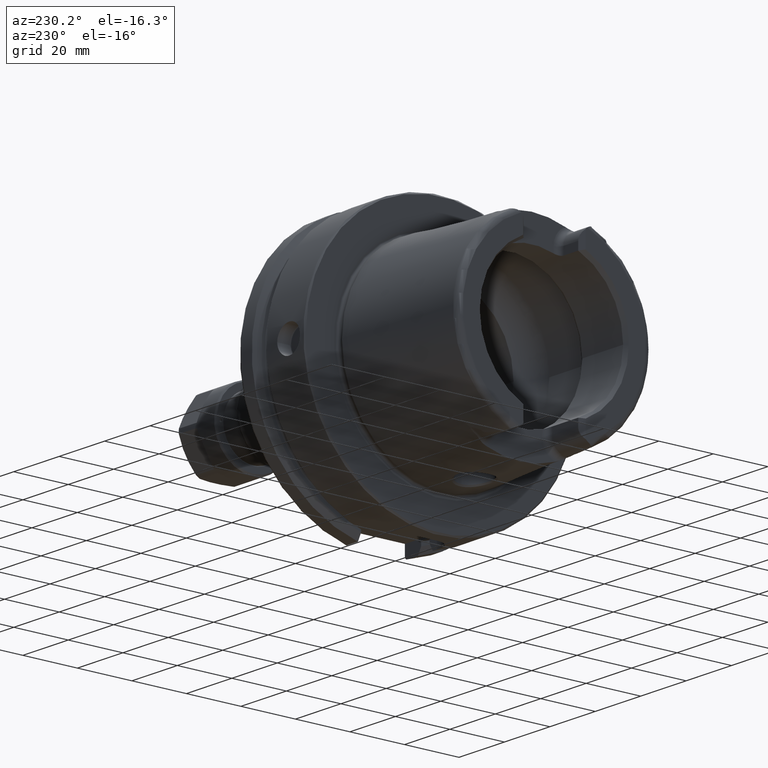
[diagram: clean part render]
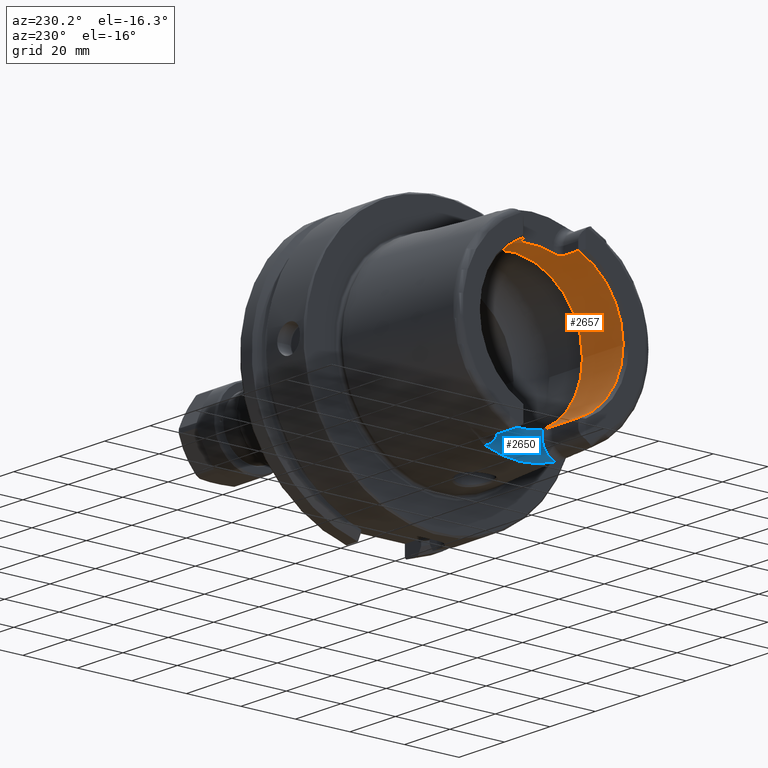
[diagram: same view with the hole feature highlighted: cylindrical wall and planar end face, labeled with their STEP entity ids]
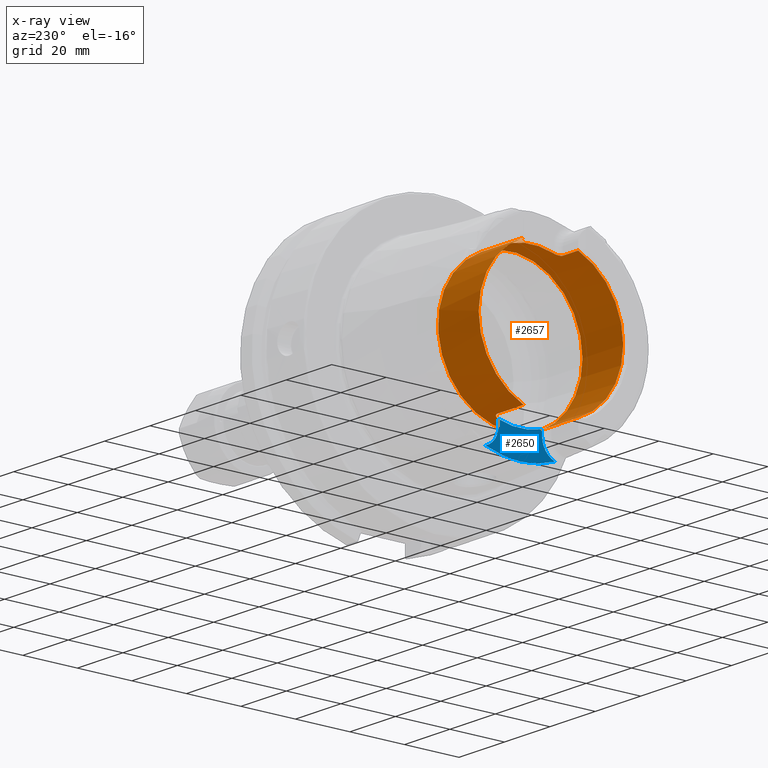
[diagram: x-ray of the same camera — body ghosted, the hole faces saturated]
A machine part, auxiliary view. The highlighted faces form one hole feature of diameter 53 mm: the cylindrical wall (entity #2657, orange) and its adjacent planar end face (entity #2650, blue) — they share a circular edge in the B-rep.
The next image is the same camera in x-ray (body ghosted, the hole faces saturated) — the bore reads through the body.
Wall:
#138=B_SPLINE_CURVE_WITH_KNOTS('',3,(#5310,#5311,#5312,#5313,#5314,#5315,
#5316,#5317,#5318,#5319),.UNSPECIFIED.,.F.,.F.,(4,2,2,2,4),(0.307245873696209,
0.387318131676521,0.467390389656833,0.542677307505841,0.617964225354849),
 .UNSPECIFIED.);
#139=B_SPLINE_CURVE_WITH_KNOTS('',3,(#5328,#5329,#5330,#5331,#5332,#5333,
#5334,#5335,#5336,#5337),.UNSPECIFIED.,.F.,.F.,(4,2,2,2,4),(0.61796422535485,
0.694491364966707,0.771018504578565,0.849854597041439,0.928690689504313),
 .UNSPECIFIED.);
#140=B_SPLINE_CURVE_WITH_KNOTS('',3,(#5346,#5347,#5348,#5349,#5350,#5351,
#5352,#5353,#5354,#5355),.UNSPECIFIED.,.F.,.F.,(4,2,2,2,4),(0.617964225354849,
0.693251143203857,0.768538061052865,0.848610319033177,0.928682577013489),
 .UNSPECIFIED.);
#141=B_SPLINE_CURVE_WITH_KNOTS('',3,(#5369,#5370,#5371,#5372,#5373,#5374,
#5375,#5376,#5377,#5378),.UNSPECIFIED.,.F.,.F.,(4,2,2,2,4),(0.307245873696209,
0.387318131676521,0.467390389656833,0.542677307505841,0.617964225354849),
 .UNSPECIFIED.);
#372=FACE_OUTER_BOUND('',#534,.T.);
#534=EDGE_LOOP('',(#2214,#2215,#2216,#2217,#2218,#2219,#2220,#2221,#2222,
#2223,#2224,#2225,#2226,#2227,#2228,#2229,#2230));
#629=LINE('',#4077,#771);
#635=LINE('',#4171,#777);
#641=LINE('',#4187,#783);
#645=LINE('',#4253,#787);
#704=LINE('',#5393,#846);
#771=VECTOR('',#3268,10.);
#777=VECTOR('',#3298,10.);
#783=VECTOR('',#3312,10.);
#787=VECTOR('',#3336,10.);
#846=VECTOR('',#3633,26.5);
#989=CIRCLE('',#2982,26.5);
#994=CIRCLE('',#2993,26.5);
#995=CIRCLE('',#2995,26.5);
#996=CIRCLE('',#2996,26.5);
#997=CIRCLE('',#2997,26.5);
#998=CIRCLE('',#2998,26.5);
#999=CIRCLE('',#2999,26.5);
#1099=VERTEX_POINT('',#4067);
#1102=VERTEX_POINT('',#4075);
#1111=VERTEX_POINT('',#4124);
#1118=VERTEX_POINT('',#4170);
#1121=VERTEX_POINT('',#4177);
#1124=VERTEX_POINT('',#4185);
#1131=VERTEX_POINT('',#4220);
#1136=VERTEX_POINT('',#4252);
#1241=VERTEX_POINT('',#5308);
#1243=VERTEX_POINT('',#5327);
#1245=VERTEX_POINT('',#5345);
#1246=VERTEX_POINT('',#5362);
#1248=VERTEX_POINT('',#5389);
#1249=VERTEX_POINT('',#5390);
#1250=VERTEX_POINT('',#5392);
#1377=EDGE_CURVE('',#1099,#1102,#629,.T.);
#1395=EDGE_CURVE('',#1118,#1111,#635,.T.);
#1403=EDGE_CURVE('',#1121,#1124,#641,.T.);
#1417=EDGE_CURVE('',#1136,#1131,#645,.T.);
#1574=EDGE_CURVE('',#1241,#1124,#138,.T.);
#1578=EDGE_CURVE('',#1136,#1243,#139,.T.);
#1583=EDGE_CURVE('',#1118,#1245,#140,.T.);
#1587=EDGE_CURVE('',#1246,#1245,#989,.T.);
#1591=EDGE_CURVE('',#1246,#1102,#141,.T.);
#1595=EDGE_CURVE('',#1241,#1243,#994,.T.);
#1596=EDGE_CURVE('',#1248,#1249,#995,.T.);
#1597=EDGE_CURVE('',#1248,#1250,#704,.T.);
#1598=EDGE_CURVE('',#1121,#1250,#996,.T.);
#1599=EDGE_CURVE('',#1099,#1131,#997,.T.);
#1600=EDGE_CURVE('',#1250,#1111,#998,.T.);
#1601=EDGE_CURVE('',#1249,#1248,#999,.T.);
#2214=ORIENTED_EDGE('',*,*,#1596,.F.);
#2215=ORIENTED_EDGE('',*,*,#1597,.T.);
#2216=ORIENTED_EDGE('',*,*,#1598,.F.);
#2217=ORIENTED_EDGE('',*,*,#1403,.T.);
#2218=ORIENTED_EDGE('',*,*,#1574,.F.);
#2219=ORIENTED_EDGE('',*,*,#1595,.T.);
#2220=ORIENTED_EDGE('',*,*,#1578,.F.);
#2221=ORIENTED_EDGE('',*,*,#1417,.T.);
#2222=ORIENTED_EDGE('',*,*,#1599,.F.);
#2223=ORIENTED_EDGE('',*,*,#1377,.T.);
#2224=ORIENTED_EDGE('',*,*,#1591,.F.);
#2225=ORIENTED_EDGE('',*,*,#1587,.T.);
#2226=ORIENTED_EDGE('',*,*,#1583,.F.);
#2227=ORIENTED_EDGE('',*,*,#1395,.T.);
#2228=ORIENTED_EDGE('',*,*,#1600,.F.);
#2229=ORIENTED_EDGE('',*,*,#1597,.F.);
#2230=ORIENTED_EDGE('',*,*,#1601,.F.);
#2553=CYLINDRICAL_SURFACE('',#2994,26.5);
#2657=ADVANCED_FACE('',(#372),#2553,.F.);
#2982=AXIS2_PLACEMENT_3D('',#5363,#3603,#3604);
#2993=AXIS2_PLACEMENT_3D('',#5387,#3627,#3628);
#2994=AXIS2_PLACEMENT_3D('',#5388,#3629,#3630);
#2995=AXIS2_PLACEMENT_3D('',#5391,#3631,#3632);
#2996=AXIS2_PLACEMENT_3D('',#5394,#3634,#3635);
#2997=AXIS2_PLACEMENT_3D('',#5395,#3636,#3637);
#2998=AXIS2_PLACEMENT_3D('',#5396,#3638,#3639);
#2999=AXIS2_PLACEMENT_3D('',#5397,#3640,#3641);
#3268=DIRECTION('',(1.,0.,0.));
#3298=DIRECTION('',(-1.,0.,0.));
#3312=DIRECTION('',(1.,0.,0.));
#3336=DIRECTION('',(-1.,0.,0.));
#3603=DIRECTION('center_axis',(-1.,0.,0.));
#3604=DIRECTION('ref_axis',(0.,1.,0.));
#3627=DIRECTION('center_axis',(-1.,0.,0.));
#3628=DIRECTION('ref_axis',(0.,1.,0.));
#3629=DIRECTION('center_axis',(-1.,0.,0.));
#3630=DIRECTION('ref_axis',(0.,1.,0.));
#3631=DIRECTION('center_axis',(-1.,0.,0.));
#3632=DIRECTION('ref_axis',(0.,0.,1.));
#3633=DIRECTION('',(-1.,0.,0.));
#3634=DIRECTION('center_axis',(1.,0.,0.));
#3635=DIRECTION('ref_axis',(0.,-1.,0.));
#3636=DIRECTION('center_axis',(1.,0.,0.));
#3637=DIRECTION('ref_axis',(0.,-1.,0.));
#3638=DIRECTION('center_axis',(1.,0.,0.));
#3639=DIRECTION('ref_axis',(0.,-1.,0.));
#3640=DIRECTION('center_axis',(-1.,0.,0.));
#3641=DIRECTION('ref_axis',(0.,0.,1.));
#4067=CARTESIAN_POINT('',(-48.5,10.01,-24.5367051577835));
#4075=CARTESIAN_POINT('',(-37.,10.01,-24.5367051577835));
#4077=CARTESIAN_POINT('',(-40.2903629710818,10.01,-24.5367051577835));
#4124=CARTESIAN_POINT('',(-48.5,-10.01,-24.5367051577835));
#4170=CARTESIAN_POINT('',(-37.,-10.01,-24.5367051577835));
#4171=CARTESIAN_POINT('',(-40.2903629710818,-10.01,-24.5367051577835));
#4177=CARTESIAN_POINT('',(-48.5,-10.01,24.5367051577835));
#4185=CARTESIAN_POINT('',(-42.,-10.01,24.5367051577835));
#4187=CARTESIAN_POINT('',(-40.2903629710818,-10.01,24.5367051577835));
#4220=CARTESIAN_POINT('',(-48.5,10.01,24.5367051577835));
#4252=CARTESIAN_POINT('',(-42.,10.01,24.5367051577835));
#4253=CARTESIAN_POINT('',(-40.2903629710818,10.01,24.5367051577835));
#5308=CARTESIAN_POINT('',(-40.,-8.01,25.2604414054862));
#5310=CARTESIAN_POINT('Ctrl Pts',(-40.,-8.01,25.2604414054862));
#5311=CARTESIAN_POINT('Ctrl Pts',(-40.,-8.26442271458071,25.1797648285777));
#5312=CARTESIAN_POINT('Ctrl Pts',(-40.0513332778729,-8.53503831367686,25.0892968127514));
#5313=CARTESIAN_POINT('Ctrl Pts',(-40.2604388709541,-9.03317850506395,24.9142806373643));
#5314=CARTESIAN_POINT('Ctrl Pts',(-40.4182028025644,-9.2607746884821,24.8299262887475));
#5315=CARTESIAN_POINT('Ctrl Pts',(-40.7762398849713,-9.61038047170956,24.6966285655713));
#5316=CARTESIAN_POINT('Ctrl Pts',(-40.996584045901,-9.75993653512726,24.6374761492843));
#5317=CARTESIAN_POINT('Ctrl Pts',(-41.4829332858843,-9.95981108540838,24.557356442995));
#5318=CARTESIAN_POINT('Ctrl Pts',(-41.74904360717,-10.01,24.5367051577835));
#5319=CARTESIAN_POINT('Ctrl Pts',(-42.,-10.01,24.5367051577835));
#5327=CARTESIAN_POINT('',(-40.,8.01,25.2604414054862));
#5328=CARTESIAN_POINT('Ctrl Pts',(-42.,10.01,24.5367051577835));
#5329=CARTESIAN_POINT('Ctrl Pts',(-41.7449095346271,10.01,24.5367051577835));
#5330=CARTESIAN_POINT('Ctrl Pts',(-41.4747619014646,9.95816285425487,24.5580391842641));
#5331=CARTESIAN_POINT('Ctrl Pts',(-40.9823460284033,9.75229566196282,24.640515927451));
#5332=CARTESIAN_POINT('Ctrl Pts',(-40.7599680829949,9.59839520774108,24.7013267120605));
#5333=CARTESIAN_POINT('Ctrl Pts',(-40.4063494382929,9.24477656303909,24.8358806096526));
#5334=CARTESIAN_POINT('Ctrl Pts',(-40.2529543645221,9.01930384320105,24.9192727261742));
#5335=CARTESIAN_POINT('Ctrl Pts',(-40.049776768453,8.52719637786957,25.0919293188873));
#5336=CARTESIAN_POINT('Ctrl Pts',(-40.,8.26049490494288,25.1810103236462));
#5337=CARTESIAN_POINT('Ctrl Pts',(-40.,8.01,25.2604414054862));
#5345=CARTESIAN_POINT('',(-35.,-8.01,-25.2604414054862));
#5346=CARTESIAN_POINT('Ctrl Pts',(-37.,-10.01,-24.5367051577835));
#5347=CARTESIAN_POINT('Ctrl Pts',(-36.74904360717,-10.01,-24.5367051577835));
#5348=CARTESIAN_POINT('Ctrl Pts',(-36.4829332858843,-9.95981108540838,-24.557356442995));
#5349=CARTESIAN_POINT('Ctrl Pts',(-35.9965840459011,-9.75993653512726,-24.6374761492843));
#5350=CARTESIAN_POINT('Ctrl Pts',(-35.7762398849713,-9.61038047170956,-24.6966285655713));
#5351=CARTESIAN_POINT('Ctrl Pts',(-35.4182028025644,-9.2607746884821,-24.8299262887475));
#5352=CARTESIAN_POINT('Ctrl Pts',(-35.2604388709541,-9.03317850506395,-24.9142806373643));
#5353=CARTESIAN_POINT('Ctrl Pts',(-35.0513332778729,-8.53503831367686,-25.0892968127514));
#5354=CARTESIAN_POINT('Ctrl Pts',(-35.,-8.26442271458071,-25.1797648285777));
#5355=CARTESIAN_POINT('Ctrl Pts',(-35.,-8.01,-25.2604414054862));
#5362=CARTESIAN_POINT('',(-35.,8.01,-25.2604414054862));
#5363=CARTESIAN_POINT('Origin',(-35.,0.,0.));
#5369=CARTESIAN_POINT('Ctrl Pts',(-35.,8.01,-25.2604414054862));
#5370=CARTESIAN_POINT('Ctrl Pts',(-35.,8.26442271458071,-25.1797648285777));
#5371=CARTESIAN_POINT('Ctrl Pts',(-35.0513332778729,8.53503831367686,-25.0892968127514));
#5372=CARTESIAN_POINT('Ctrl Pts',(-35.2604388709541,9.03317850506395,-24.9142806373643));
#5373=CARTESIAN_POINT('Ctrl Pts',(-35.4182028025644,9.2607746884821,-24.8299262887475));
#5374=CARTESIAN_POINT('Ctrl Pts',(-35.7762398849713,9.61038047170956,-24.6966285655713));
#5375=CARTESIAN_POINT('Ctrl Pts',(-35.9965840459011,9.75993653512726,-24.6374761492843));
#5376=CARTESIAN_POINT('Ctrl Pts',(-36.4829332858843,9.95981108540838,-24.557356442995));
#5377=CARTESIAN_POINT('Ctrl Pts',(-36.74904360717,10.01,-24.5367051577835));
#5378=CARTESIAN_POINT('Ctrl Pts',(-37.,10.01,-24.5367051577835));
#5387=CARTESIAN_POINT('Origin',(-40.,0.,0.));
#5388=CARTESIAN_POINT('Origin',(-40.2903629710818,0.,0.));
#5389=CARTESIAN_POINT('',(-30.5807259421637,-26.5,3.24531401774049E-15));
#5390=CARTESIAN_POINT('',(-30.5807259421637,-3.24531401774049E-15,-26.5));
#5391=CARTESIAN_POINT('Origin',(-30.5807259421637,0.,0.));
#5392=CARTESIAN_POINT('',(-48.5,-26.5,3.24531401774049E-15));
#5393=CARTESIAN_POINT('',(-40.2903629710818,-26.5,3.24531401774049E-15));
#5394=CARTESIAN_POINT('Origin',(-48.5,0.,0.));
#5395=CARTESIAN_POINT('Origin',(-48.5,0.,0.));
#5396=CARTESIAN_POINT('Origin',(-48.5,0.,0.));
#5397=CARTESIAN_POINT('Origin',(-30.5807259421637,0.,0.));
End face:
#223=PLANE('',#2981);
#365=FACE_OUTER_BOUND('',#527,.T.);
#527=EDGE_LOOP('',(#2184,#2185,#2186,#2187,#2188,#2189));
#700=LINE('',#5356,#842);
#702=LINE('',#5365,#844);
#842=VECTOR('',#3593,10.);
#844=VECTOR('',#3605,10.);
#937=CIRCLE('',#2880,36.25399498998);
#987=CIRCLE('',#2976,6.88);
#989=CIRCLE('',#2982,26.5);
#990=CIRCLE('',#2983,6.88);
#1144=VERTEX_POINT('',#4436);
#1145=VERTEX_POINT('',#4447);
#1244=VERTEX_POINT('',#5341);
#1245=VERTEX_POINT('',#5345);
#1246=VERTEX_POINT('',#5362);
#1247=VERTEX_POINT('',#5364);
#1429=EDGE_CURVE('',#1144,#1145,#937,.T.);
#1582=EDGE_CURVE('',#1244,#1144,#987,.T.);
#1584=EDGE_CURVE('',#1245,#1244,#700,.T.);
#1587=EDGE_CURVE('',#1246,#1245,#989,.T.);
#1588=EDGE_CURVE('',#1247,#1246,#702,.T.);
#1589=EDGE_CURVE('',#1145,#1247,#990,.T.);
#2184=ORIENTED_EDGE('',*,*,#1582,.F.);
#2185=ORIENTED_EDGE('',*,*,#1584,.F.);
#2186=ORIENTED_EDGE('',*,*,#1587,.F.);
#2187=ORIENTED_EDGE('',*,*,#1588,.F.);
#2188=ORIENTED_EDGE('',*,*,#1589,.F.);
#2189=ORIENTED_EDGE('',*,*,#1429,.F.);
#2650=ADVANCED_FACE('',(#365),#223,.T.);
#2880=AXIS2_PLACEMENT_3D('',#4448,#3346,#3347);
#2976=AXIS2_PLACEMENT_3D('',#5343,#3589,#3590);
#2981=AXIS2_PLACEMENT_3D('',#5361,#3601,#3602);
#2982=AXIS2_PLACEMENT_3D('',#5363,#3603,#3604);
#2983=AXIS2_PLACEMENT_3D('',#5366,#3606,#3607);
#3346=DIRECTION('center_axis',(1.,0.,0.));
#3347=DIRECTION('ref_axis',(0.,1.,0.));
#3589=DIRECTION('center_axis',(-1.,0.,0.));
#3590=DIRECTION('ref_axis',(0.,0.510937901715381,-0.8596176246394));
#3593=DIRECTION('',(0.,0.,-1.));
#3601=DIRECTION('center_axis',(-1.,0.,0.));
#3602=DIRECTION('ref_axis',(0.,0.,1.));
#3603=DIRECTION('center_axis',(-1.,0.,0.));
#3604=DIRECTION('ref_axis',(0.,1.,0.));
#3605=DIRECTION('',(0.,0.,1.));
#3606=DIRECTION('center_axis',(-1.,0.,0.));
#3607=DIRECTION('ref_axis',(0.,-0.510937901715381,-0.8596176246394));
#4436=CARTESIAN_POINT('',(-35.,-12.7918651267415,-33.9222690767105));
#4447=CARTESIAN_POINT('',(-35.,12.7918651267415,-33.9222690767105));
#4448=CARTESIAN_POINT('Origin',(-35.,0.,0.));
#5341=CARTESIAN_POINT('',(-35.,-8.01,-27.37));
#5343=CARTESIAN_POINT('Origin',(-35.,-14.89,-27.37));
#5345=CARTESIAN_POINT('',(-35.,-8.01,-25.2604414054862));
#5356=CARTESIAN_POINT('',(-35.,-8.01,-28.685));
#5361=CARTESIAN_POINT('Origin',(-35.,8.88178419700125E-15,-30.));
#5362=CARTESIAN_POINT('',(-35.,8.01,-25.2604414054862));
#5363=CARTESIAN_POINT('Origin',(-35.,0.,0.));
#5364=CARTESIAN_POINT('',(-35.,8.01,-27.37));
#5365=CARTESIAN_POINT('',(-35.,8.01,-25.));
#5366=CARTESIAN_POINT('Origin',(-35.,14.89,-27.37));